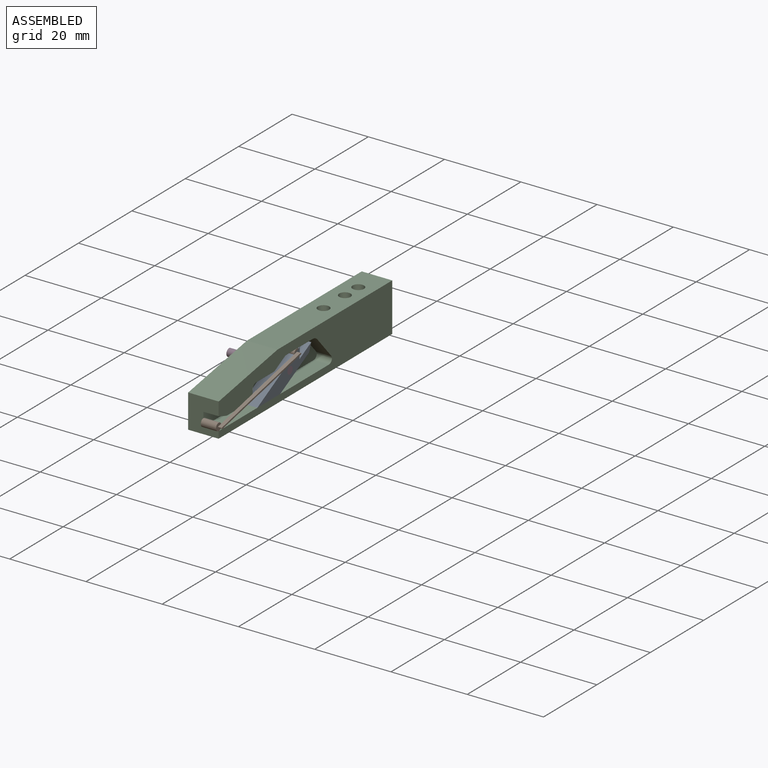
[diagram: assembled view]
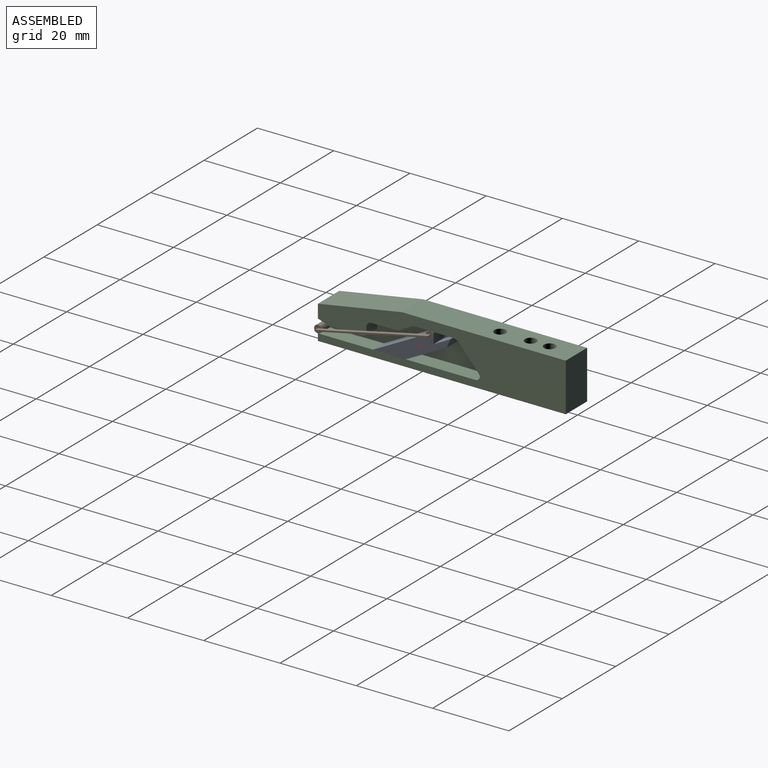
[diagram: assembled view, second angle]
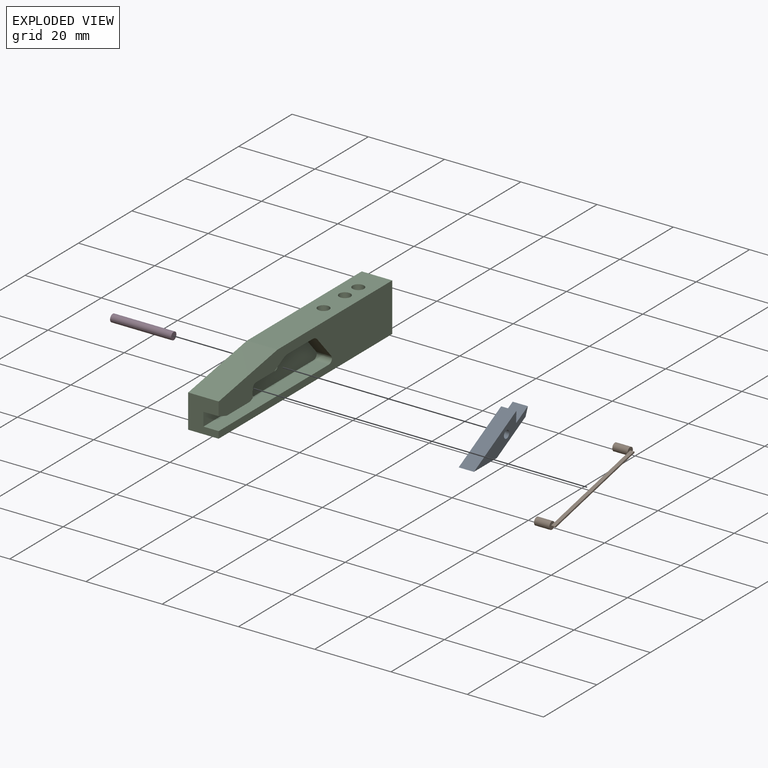
[diagram: exploded view]
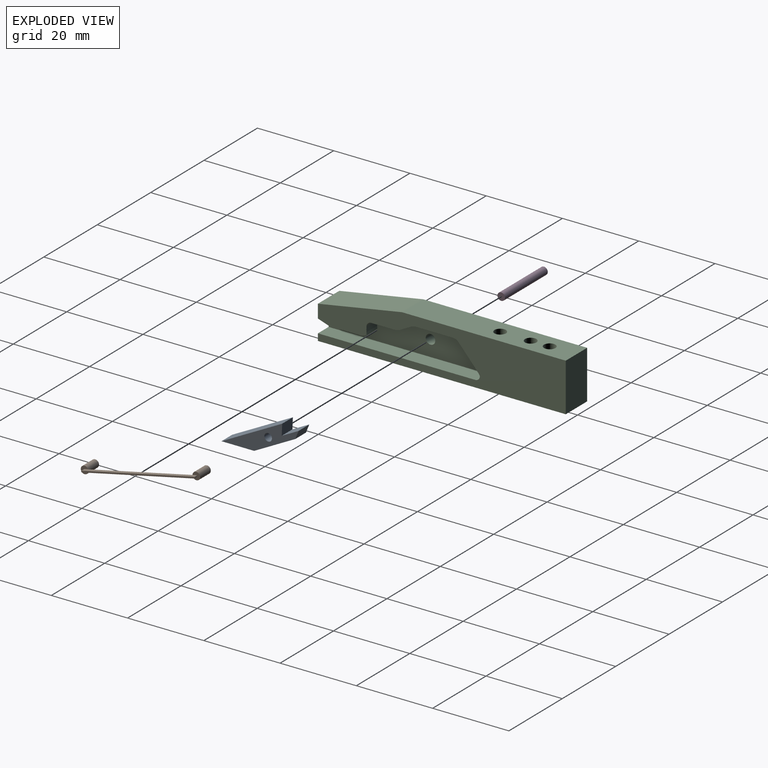
[diagram: exploded view, second angle]
ASSEMBLY  parts=4 mates=2
PART A: 9 faces, bbox 4x20.2x8.4 mm
  f0: plane 4.42x4mm, normal (0,-0.47,0.88), area 20mm2, adj f1,f5,f7,f8
  f1: plane 4x2.88mm, normal (0,1,-0.04), area 11.5mm2, adj f0,f2,f7,f8
  f2: plane 15.92x8.4mm, normal (0,-0.47,0.88), area 72mm2, adj f1,f3,f7,f8
  f3: plane 8.57x4mm, normal (0,0,-1), area 34.3mm2, adj f2,f4,f7,f8
  f4: plane 10.78x5.69mm, normal (0,0.47,-0.88), area 48.8mm2, adj f3,f5,f7,f8
  f5: plane 4x2.16mm, normal (0,0.93,-0.38), area 9.3mm2, adj f0,f4,f7,f8
  f6: cylinder r=1mm len=4mm, axis (-1,0,0), area 25.1mm2, adj f7,f8
  f7: plane 20.23x8.4mm, normal (1,0,0), area 55.9mm2, adj f0,f1,f2,f3,f4,f5,f6
  f8: plane 20.23x8.4mm, normal (-1,0,0), area 55.9mm2, adj f0,f1,f2,f3,f4,f5,f6
PART B: 12 faces, bbox 5x31.4x8 mm
  f0: plane 2x2mm, normal (1,0,0), area 2.7mm2, adj f1,f7,f8,f9
  f1: cylinder r=1mm len=4mm, axis (-1,0,0), area 25.1mm2, adj f0,f2,f6
  f2: plane 2x2mm, normal (-1,0,0), area 3.1mm2, adj f1
  f3: plane 2x2mm, normal (1,0,0), area 2.7mm2, adj f4,f7,f9,f10
  f4: cylinder r=1mm len=4mm, axis (-1,0,0), area 25.1mm2, adj f3,f5,f6
  f5: plane 2x2mm, normal (-1,0,0), area 3.1mm2, adj f4
  f6: plane 27.55x6mm, normal (-1,0,0), area 11.2mm2, adj f1,f4,f7,f9
  f7: plane 29.39x6mm, normal (0,0.2,-0.98), area 30mm2, adj f0,f3,f6,f8,f10,f11
  f8: cylinder r=0.2mm len=1mm, axis (-1,0,0), area 0.6mm2, adj f0,f7,f9,f11
  f9: plane 29.39x6mm, normal (0,-0.2,0.98), area 30mm2, adj f0,f3,f6,f8,f10,f11
  f10: cylinder r=0.2mm len=1mm, axis (-1,0,0), area 0.6mm2, adj f3,f7,f9,f11
  f11: plane 29.79x6.4mm, normal (1,0,0), area 12.1mm2, adj f7,f8,f9,f10
PART C: 32 faces, bbox 8x65x12.7 mm
  f0: plane 9.69x4mm, normal (0,0,-1), area 38.8mm2, adj f1,f8,f11,f19
  f1: cylinder r=2.2mm len=4mm, axis (-1,0,0), area 7.4mm2, adj f0,f2,f8,f11
  f2: plane 5.94x5.26mm, normal (0,-0.75,-0.66), area 31.7mm2, adj f1,f8,f11,f24
  f3: plane 41.28x4mm, normal (0,0,1), area 165.1mm2, adj f4,f8,f11,f23
  f4: plane 8.82x8mm, normal (0,-1,0), area 56.6mm2, adj f3,f5,f8,f10,f11,f20,f25
  f5: plane 65x8mm, normal (0,0,-1), area 520mm2, adj f4,f6,f8,f10
  f6: plane 12.7x8mm, normal (0,1,0), area 101.6mm2, adj f5,f7,f8,f10
  f7: plane 43x8mm, normal (0,0,1), area 322.8mm2, adj f6,f8,f10,f25,f26,f28,f30
  f8: plane 65x12.7mm, normal (1,0,0), area 544.5mm2, adj f0,f1,f2,f3,f4,f5,f6,f7
  f9: cylinder r=1.25mm len=4mm, axis (1,0,0), area 31.4mm2, adj f10,f11
  f10: plane 65x12.7mm, normal (-1,0,0), area 777.9mm2, adj f4,f5,f6,f7,f9,f25
  f11: plane 42.47x8.4mm, normal (1,0,0), area 233.4mm2, adj f0,f1,f2,f3,f4,f9,f12,f13
  f12: plane 7.96x4mm, normal (0,0,-1), area 31.8mm2, adj f8,f11,f17,f21
  f13: plane 4x0.47mm, normal (0,0.47,-0.88), area 2.1mm2, adj f8,f11,f14,f17
  f14: cylinder r=14mm len=4mm, axis (-1,0,0), area 8.3mm2, adj f8,f11,f13,f22
  f15: plane 6.38x4mm, normal (0,0,-1), area 25.5mm2, adj f8,f11,f18,f22
  f16: plane 4x3.21mm, normal (0,0.47,-0.88), area 14.5mm2, adj f8,f11,f18,f19
  f17: cylinder r=2.2mm len=4mm, axis (1,0,0), area 4.3mm2, adj f8,f11,f12,f13
  f18: cylinder r=2.2mm len=4mm, axis (-1,0,0), area 4.3mm2, adj f8,f11,f15,f16
  f19: cylinder r=2.2mm len=4mm, axis (1,0,0), area 4.3mm2, adj f0,f8,f11,f16
  f20: plane 4x2.69mm, normal (0,-0.32,-0.95), area 11.4mm2, adj f4,f8,f11,f21
  f21: cylinder r=2mm len=4mm, axis (-1,0,0), area 2.6mm2, adj f8,f11,f12,f20
  f22: cylinder r=1.2mm len=4mm, axis (-1,0,0), area 7.2mm2, adj f8,f11,f14,f15
  f23: cylinder r=1.2mm len=4mm, axis (1,0,0), area 7mm2, adj f3,f8,f11,f24
  f24: cylinder r=1.2mm len=4mm, axis (1,0,0), area 2.9mm2, adj f2,f8,f11,f23
  f25: plane 22x8mm, normal (0,-0.17,0.98), area 178.7mm2, adj f4,f7,f8,f10
  f26: cylinder r=1.5mm len=9mm, axis (0,0,1), area 84.8mm2, adj f7,f27
  f27: plane 3x3mm, normal (0,0,1), area 7.1mm2, adj f26
  f28: cylinder r=1.5mm len=9mm, axis (0,0,1), area 84.8mm2, adj f7,f29
  f29: plane 3x3mm, normal (0,0,1), area 7.1mm2, adj f28
  f30: cylinder r=1.5mm len=9mm, axis (0,0,1), area 84.8mm2, adj f7,f31
  f31: plane 3x3mm, normal (0,0,1), area 7.1mm2, adj f30
PART D: 3 faces, bbox 16x2x2 mm
  f0: cylinder r=1mm len=16mm, axis (-1,0,0), area 100.5mm2, adj f1,f2
  f1: plane 2x2mm, normal (1,0,0), area 3.1mm2, adj f0
  f2: plane 2x2mm, normal (-1,0,0), area 3.1mm2, adj f0
PLACE A rot(axis=(-1,0,0),0deg) t=(0,0,0)mm
PLACE B rot(axis=(1,0,0),0.8deg) t=(0,-6.09,0.27)mm
PLACE C at identity fixed
PLACE D at identity fixed
MATE revolute A.f6 <-> D.f0  axis (1,0,0) through (-17,0.72,53.05)mm
MATE planar C.f11 <-> B.f4  axis (1,0,0) through (-21,-1.73,52.16)mm
